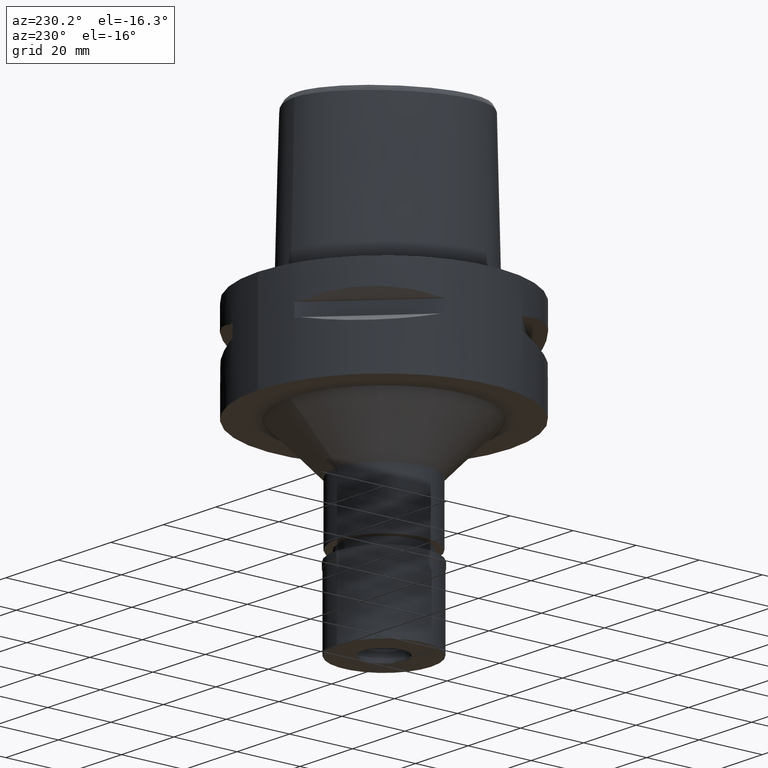
[diagram: clean part render]
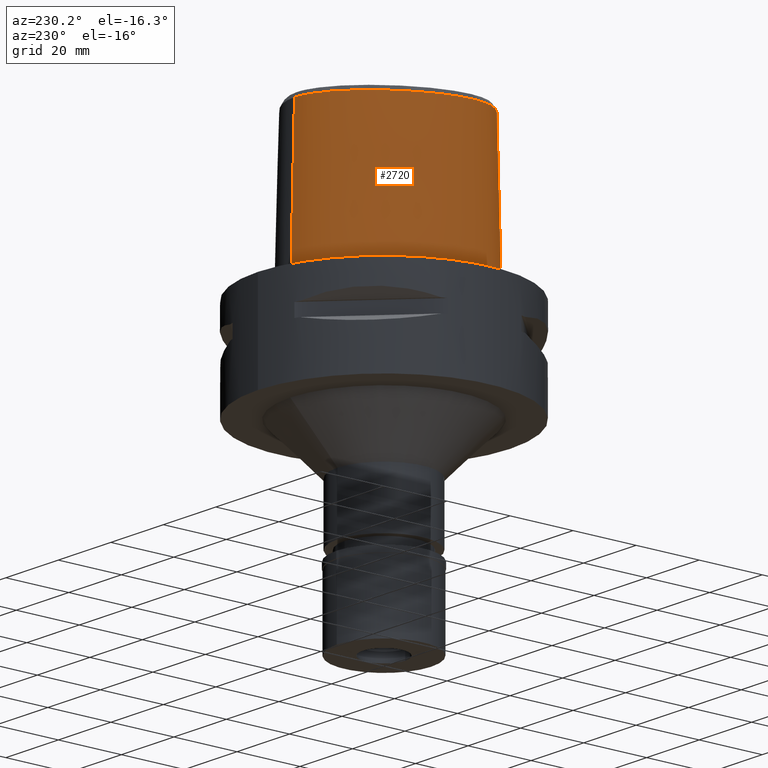
[diagram: same view with one face highlighted and labeled with its STEP entity id]
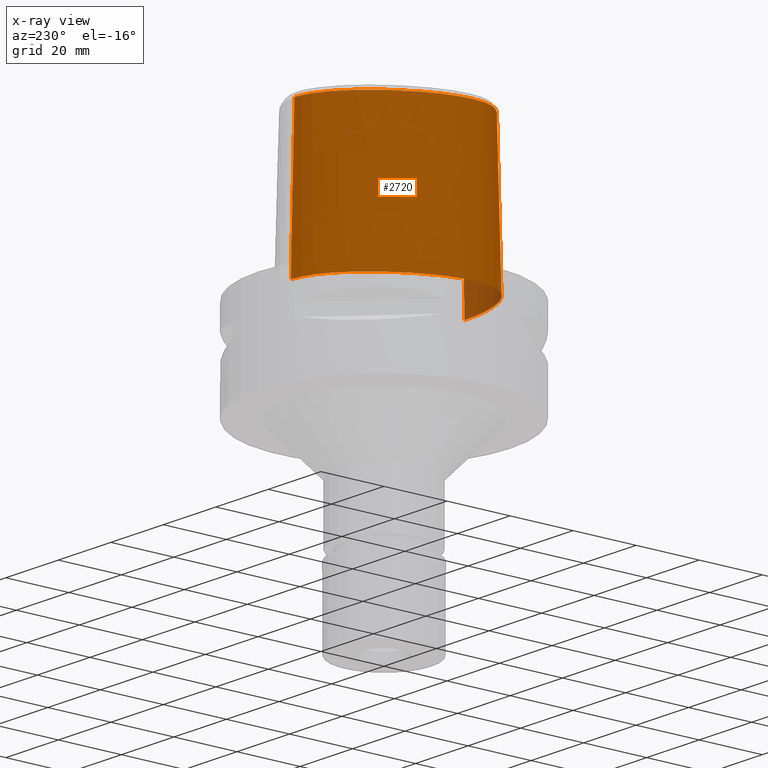
[diagram: x-ray of the same camera — body ghosted, the highlighted face saturated]
A machine part, auxiliary view. The second image highlights one B-rep face of the part: STEP entity #2720.
The next image is the same camera in x-ray: the body ghosted, the highlighted face saturated — about 3% of this face is hidden behind the body in this view.
In plain terms, the highlighted face is a freeform B-spline surface patch.
Its self-contained STEP definition (entity closure, byte-faithful):
#13 = CARTESIAN_POINT ( 'NONE',  ( -4.525164906393182918, -24.74975131237588499, 24.43996234641522136 ) ) ;
#42 = CARTESIAN_POINT ( 'NONE',  ( -2.466259342606089700, -24.79105701084885638, 28.82372012011441953 ) ) ;
#46 = CARTESIAN_POINT ( 'NONE',  ( 0.8462420188360999518, -25.18772735895000281, 15.19676982673000154 ) ) ;
#64 = CARTESIAN_POINT ( 'NONE',  ( -4.304263127651235088, -24.79330400446727012, 23.52125164125747148 ) ) ;
#65 = B_SPLINE_CURVE_WITH_KNOTS ( 'NONE', 3,
 ( #1397, #4050, #3643, #565 ),
 .UNSPECIFIED., .F., .F.,
 ( 4, 4 ),
 ( 0.0000000000000000000, 1.000000000000000000 ),
 .UNSPECIFIED. ) ;
#67 = CARTESIAN_POINT ( 'NONE',  ( -3.149084863333830864, 29.34015619913658668, 2.069908831630554863E-06 ) ) ;
#93 = CARTESIAN_POINT ( 'NONE',  ( -4.160790905028415310, -24.72274124955079699, 26.84178595757741448 ) ) ;
#109 = CARTESIAN_POINT ( 'NONE',  ( -0.7257524944403999090, 29.22811259544999984, 15.19676982673000154 ) ) ;
#119 = B_SPLINE_SURFACE_WITH_KNOTS ( 'NONE', 3, 3, ( 
 ( #4086, #2868, #3632, #2115 ),
 ( #4369, #2453, #2061, #156 ),
 ( #3606, #109, #1681, #1727 ),
 ( #1357, #4767, #1309, #4391 ),
 ( #927, #2092, #4522, #1465 ),
 ( #4600, #1879, #3048, #4187 ),
 ( #3804, #4156, #723, #316 ),
 ( #1777, #2197, #2248, #4208 ),
 ( #634, #3429, #1831, #2221 ),
 ( #690, #742, #4970, #1513 ),
 ( #2295, #3322, #2648, #3825 ),
 ( #2941, #4864, #4889, #3023 ),
 ( #1409, #1133, #4493, #2673 ),
 ( #2276, #1026, #2572, #4110 ),
 ( #3779, #3725, #292, #227 ),
 ( #1804, #3352, #1436, #4134 ),
 ( #2971, #4570, #1856, #1055 ),
 ( #2597, #2999, #662, #1104 ),
 ( #3382, #3751, #4919, #4546 ),
 ( #260, #1081, #2621, #3406 ),
 ( #4944, #1488, #4276, #3497 ),
 ( #388, #1581, #796, #4332 ),
 ( #2421, #1181, #3907, #4254 ),
 ( #412, #1560, #3175, #3098 ),
 ( #4711, #3125, #3152, #1252 ),
 ( #3549, #2718, #2787, #1627 ),
 ( #1225, #46, #2694, #4666 ) ),
 .UNSPECIFIED., .F., .F., .F.,
 ( 4, 1, 1, 1, 1, 1, 1, 1, 1, 1, 1, 1, 1, 1, 1, 1, 1, 1, 1, 1, 1, 1, 1, 1, 4 ),
 ( 4, 4 ),
 ( -0.01204223939044000123, 0.0000000000000000000, 0.04166666666721000056, 0.08333333333384000674, 0.1250000000004999889, 0.1666666666671000052, 0.2500000000004000134, 0.3333333333335999904, 0.4166666666668999985, 0.4583333333335000148, 0.5000000000001999512, 0.5416666666667999674, 0.5833333333333999837, 0.6250000000000000000, 0.6458333333333000637, 0.6666666666667000474, 0.6875000000000000000, 0.7083333333333000637, 0.7499999999999000799, 0.7916666666666000163, 0.8333333333332000326, 0.8749999999998000488, 0.9166666666664999852, 1.000000000000000000, 1.008851807892999997 ),
 ( 5.285500863371999805E-09, 0.9999997304393999364 ),
 .UNSPECIFIED. ) ;
#130 = ORIENTED_EDGE ( 'NONE', *, *, #2550, .F. ) ;
#137 = CARTESIAN_POINT ( 'NONE',  ( -25.28208905154471609, -12.92658008282552906, 46.52070903171001248 ) ) ;
#141 = EDGE_CURVE ( 'NONE', #557, #2676, #842, .T. ) ;
#156 = CARTESIAN_POINT ( 'NONE',  ( 0.5552374612796999731, 28.37983258200999970, 47.45113843858000280 ) ) ;
#173 = EDGE_CURVE ( 'NONE', #2676, #2875, #3344, .T. ) ;
#212 = CARTESIAN_POINT ( 'NONE',  ( -1.924424886932000021E-11, -25.57499999999999929, 1.155372094292999947E-13 ) ) ;
#219 = CARTESIAN_POINT ( 'NONE',  ( -4.156037652092050116, -24.81598364112166166, 23.14362525770356172 ) ) ;
#227 = CARTESIAN_POINT ( 'NONE',  ( -25.95531695925000193, -11.08496013620000120, 47.45113843858000280 ) ) ;
#246 = CARTESIAN_POINT ( 'NONE',  ( -3.310528231614961570, -24.91386642802240914, 21.87824841565021927 ) ) ;
#260 = CARTESIAN_POINT ( 'NONE',  ( -21.43542293252000164, -19.61750339137000054, -0.9304144791877999587 ) ) ;
#292 = CARTESIAN_POINT ( 'NONE',  ( -26.34453533278999871, -11.19579297593999989, 31.32395413266000261 ) ) ;
#299 = CARTESIAN_POINT ( 'NONE',  ( -25.63812385369142177, -14.80217770845578862, 2.069908831630554863E-06 ) ) ;
#313 = CARTESIAN_POINT ( 'NONE',  ( -4.472216406693000579, -24.20008985674000357, 46.52070903171000538 ) ) ;
#316 = CARTESIAN_POINT ( 'NONE',  ( -12.43420517238999956, 23.14497629673000034, 47.45113843858000280 ) ) ;
#334 = CARTESIAN_POINT ( 'NONE',  ( -5.572548441001262454, -24.09475885057291933, 46.52070903171001248 ) ) ;
#388 = CARTESIAN_POINT ( 'NONE',  ( -15.30623779601999956, -22.98697010193000168, -0.9304144791877999587 ) ) ;
#407 = CARTESIAN_POINT ( 'NONE',  ( -3.029613744918177254, -24.76954858878826471, 28.39612668127829664 ) ) ;
#412 = CARTESIAN_POINT ( 'NONE',  ( -6.695047936512000142, -25.26858194627000032, -0.9304144791877999587 ) ) ;
#434 = CARTESIAN_POINT ( 'NONE',  ( -1.722296434335160331, -24.81387508079695436, 29.21144792399134360 ) ) ;
#436 = CARTESIAN_POINT ( 'NONE',  ( -1.192039543198999986E-11, 28.41206021534999593, 46.52071719450999154 ) ) ;
#460 = CARTESIAN_POINT ( 'NONE',  ( -3.972636365745560560, -24.72937778087138483, 27.22257177644781123 ) ) ;
#463 = CARTESIAN_POINT ( 'NONE',  ( -1.049694954297157201, 29.57499994825872136, 2.069908831630554863E-06 ) ) ;
#479 = CARTESIAN_POINT ( 'NONE',  ( -24.62887906780190761, -14.21948995895221834, 46.52070903171001248 ) ) ;
#484 = CARTESIAN_POINT ( 'NONE',  ( -4.231109674115415942, -24.80473516988229576, 23.32640847146424079 ) ) ;
#492 = CARTESIAN_POINT ( 'NONE',  ( 1.372734075386999954E-14, -24.83629963747999980, 29.55000000000000071 ) ) ;
#503 = CARTESIAN_POINT ( 'NONE',  ( -2.391894337598000606E-12, -25.06378435148999984, 20.44999999999999929 ) ) ;
#516 = CARTESIAN_POINT ( 'NONE',  ( -1.703896036124440627, -24.81434470502066247, 29.21892603896938567 ) ) ;
#545 = CARTESIAN_POINT ( 'NONE',  ( -2.224291573387941146, -24.99814500580177778, 21.02832322413055266 ) ) ;
#557 = VERTEX_POINT ( 'NONE', #2498 ) ;
#565 = CARTESIAN_POINT ( 'NONE',  ( -4.602965076336000827, -24.35127131300999892, 40.00000000000000000 ) ) ;
#571 = CARTESIAN_POINT ( 'NONE',  ( -4.860694777295510950E-09, -24.74922215084398758, 33.03333351495473380 ) ) ;
#589 = CARTESIAN_POINT ( 'NONE',  ( -1.888484788635112821, -25.01654759054915544, 20.86028587658105948 ) ) ;
#593 = LINE ( 'NONE', #3314, #2149 ) ;
#610 = CARTESIAN_POINT ( 'NONE',  ( -15.29776364400822253, -22.96525385793894714, 2.069908831630554863E-06 ) ) ;
#619 = CARTESIAN_POINT ( 'NONE',  ( -1.754298049354609423, -25.02308377135079809, 20.80178576367026722 ) ) ;
#634 = CARTESIAN_POINT ( 'NONE',  ( -22.35908247772999857, 12.90902243054000031, -0.9304144791877999587 ) ) ;
#642 = CARTESIAN_POINT ( 'NONE',  ( -0.9629684636076033533, 28.41206041873670074, 46.52070903171001959 ) ) ;
#643 = CARTESIAN_POINT ( 'NONE',  ( -18.55019646601040861, -21.45394526691266535, 2.069908831630554863E-06 ) ) ;
#653 = CARTESIAN_POINT ( 'NONE',  ( -4.207829589086125033, -24.80824686016802261, 23.26889234074825552 ) ) ;
#662 = CARTESIAN_POINT ( 'NONE',  ( -24.14246365504000025, -15.65707285674999838, 31.32395413266000261 ) ) ;
#669 = CARTESIAN_POINT ( 'NONE',  ( -1.192039543198999986E-11, 28.41206021534999593, 46.52071719450999154 ) ) ;
#690 = CARTESIAN_POINT ( 'NONE',  ( -25.23075706188000211, 6.836210430589999554, -0.9304144791877999587 ) ) ;
#698 = CARTESIAN_POINT ( 'NONE',  ( -17.75297947154298583, 19.52218746696002327, 2.069908831630554863E-06 ) ) ;
#706 = VECTOR ( 'NONE', #1999, 1000.000000000000000 ) ;
#723 = CARTESIAN_POINT ( 'NONE',  ( -12.70057963592000050, 23.45048169750999989, 31.32395413266000261 ) ) ;
#742 = CARTESIAN_POINT ( 'NONE',  ( -24.85610465361000010, 6.683875467027998951, 15.19676982673000154 ) ) ;
#746 = VERTEX_POINT ( 'NONE', #3380 ) ;
#796 = CARTESIAN_POINT ( 'NONE',  ( -15.01246784649999988, -22.23414198506000261, 31.32395413266000261 ) ) ;
#816 = CARTESIAN_POINT ( 'NONE',  ( -3.192130741524222604, -24.76262039752748123, 28.24235843700053650 ) ) ;
#834 = EDGE_CURVE ( 'NONE', #746, #1247, #3824, .T. ) ;
#839 = CARTESIAN_POINT ( 'NONE',  ( -2.652045588672246712, -24.78435656486181671, 28.70018943685113300 ) ) ;
#842 = LINE ( 'NONE', #436, #706 ) ;
#864 = CARTESIAN_POINT ( 'NONE',  ( -1.733314166581077176, -24.81359117582310247, 29.20692116581588138 ) ) ;
#874 = ORIENTED_EDGE ( 'NONE', *, *, #4044, .F. ) ;
#889 = CARTESIAN_POINT ( 'NONE',  ( -4.256460948041316250, -24.80084657812259863, 23.39133378591558809 ) ) ;
#913 = CARTESIAN_POINT ( 'NONE',  ( -2.404910036719873911, -24.79321437770949998, 28.86288751850097256 ) ) ;
#927 = CARTESIAN_POINT ( 'NONE',  ( -6.271543170536000744, 28.37237220527000048, -0.9304144791877999587 ) ) ;
#960 = CARTESIAN_POINT ( 'NONE',  ( -25.97777222568499766, -11.09135444108204460, 46.52070903171001248 ) ) ;
#967 = CARTESIAN_POINT ( 'NONE',  ( -2.978031838724320313, -24.94531787462519290, 21.54303487591699806 ) ) ;
#1016 = CARTESIAN_POINT ( 'NONE',  ( -1.791332517423872117, -25.02133236723703646, 20.81740716610718422 ) ) ;
#1026 = CARTESIAN_POINT ( 'NONE',  ( -27.30517726777000220, -8.703986977921001511, 15.19676982673000154 ) ) ;
#1034 = CARTESIAN_POINT ( 'NONE',  ( -8.696078067631001218, 25.79654218449513792, 46.52070903171001248 ) ) ;
#1044 = CARTESIAN_POINT ( 'NONE',  ( -3.265305598819550514, -24.91820214815111356, 21.83126415608266768 ) ) ;
#1055 = CARTESIAN_POINT ( 'NONE',  ( -24.60869384085999911, -14.20783601273000052, 47.45113843858000280 ) ) ;
#1064 = CARTESIAN_POINT ( 'NONE',  ( -13.21796077126975177, 24.04386714829463045, 2.069908831630554863E-06 ) ) ;
#1081 = CARTESIAN_POINT ( 'NONE',  ( -21.19046239197000148, -19.29498367017000149, 15.19676982673000154 ) ) ;
#1104 = CARTESIAN_POINT ( 'NONE',  ( -23.81701507529000139, -15.41783917284999994, 47.45113843858000280 ) ) ;
#1133 = CARTESIAN_POINT ( 'NONE',  ( -27.47379251509000042, -5.347524336909000198, 15.19676982673000154 ) ) ;
#1137 = VERTEX_POINT ( 'NONE', #2869 ) ;
#1155 = CARTESIAN_POINT ( 'NONE',  ( -23.83579125613344374, -15.43164133759197654, 46.52070903171001248 ) ) ;
#1181 = CARTESIAN_POINT ( 'NONE',  ( -11.64093423979999997, -23.76831843705999958, 15.19676982673000154 ) ) ;
#1222 = CARTESIAN_POINT ( 'NONE',  ( -3.900686180405673831, -24.73222278675475394, 27.34720371156379315 ) ) ;
#1225 = CARTESIAN_POINT ( 'NONE',  ( 0.8532670503994000955, -25.59082387535999814, -0.9304144791877999587 ) ) ;
#1246 = CARTESIAN_POINT ( 'NONE',  ( -4.515545264917623314, -24.72200876241189249, 25.57765437788226848 ) ) ;
#1247 = VERTEX_POINT ( 'NONE', #2010 ) ;
#1252 = CARTESIAN_POINT ( 'NONE',  ( -2.334460938834000299, -24.41161097498000032, 47.45113843858000280 ) ) ;
#1273 = CARTESIAN_POINT ( 'NONE',  ( -1.150414049171941455, -24.82628098737378153, 29.40485804970646555 ) ) ;
#1290 = EDGE_CURVE ( 'NONE', #1137, #557, #4336, .T. ) ;
#1293 = CARTESIAN_POINT ( 'NONE',  ( -21.32746397970740659, 12.31340991043282429, 46.52070903171001248 ) ) ;
#1298 = CARTESIAN_POINT ( 'NONE',  ( -2.182391158247872998, -24.80062287573412050, 28.99314679185933485 ) ) ;
#1306 = ORIENTED_EDGE ( 'NONE', *, *, #1290, .T. ) ;
#1309 = CARTESIAN_POINT ( 'NONE',  ( -2.979937750282000142, 28.57037856186999747, 31.32395413266000261 ) ) ;
#1319 = CARTESIAN_POINT ( 'NONE',  ( -1.769098408929928201, -25.02238666794956856, 20.80800104489365765 ) ) ;
#1357 = CARTESIAN_POINT ( 'NONE',  ( -3.154109046518000170, 29.36302093381000233, -0.9304144791877999587 ) ) ;
#1397 = CARTESIAN_POINT ( 'NONE',  ( -4.472216406693000579, -24.20008985674000357, 46.52070903171000538 ) ) ;
#1409 = CARTESIAN_POINT ( 'NONE',  ( -27.87808443105999601, -5.337383714067000184, -0.9304144791877999587 ) ) ;
#1427 = CARTESIAN_POINT ( 'NONE',  ( -3.864901861996108856, -24.85421915751039990, 22.59833191710548661 ) ) ;
#1436 = CARTESIAN_POINT ( 'NONE',  ( -25.63065467241000306, -13.07945040987000063, 31.32395413266000261 ) ) ;
#1444 = CARTESIAN_POINT ( 'NONE',  ( -21.42129056220166206, -19.59889644298260336, 2.069908831630554863E-06 ) ) ;
#1465 = CARTESIAN_POINT ( 'NONE',  ( -5.801139431880000252, 27.25218159353000047, 47.45113843858000280 ) ) ;
#1488 = CARTESIAN_POINT ( 'NONE',  ( -18.36798846919000283, -21.11924012302000264, 15.19676982673000154 ) ) ;
#1513 = CARTESIAN_POINT ( 'NONE',  ( -24.10679983707999696, 6.379205539902000233, 47.45113843858000280 ) ) ;
#1514 = CARTESIAN_POINT ( 'NONE',  ( -1.451045074373000022E-08, -24.57504746727000011, 40.00000005214000254 ) ) ;
#1536 = CARTESIAN_POINT ( 'NONE',  ( -17.99241701171380114, -20.42933791836669144, 46.52070903171001248 ) ) ;
#1560 = CARTESIAN_POINT ( 'NONE',  ( -6.639625076614000143, -24.86795321094000144, 15.19676982673000154 ) ) ;
#1581 = CARTESIAN_POINT ( 'NONE',  ( -15.15935282126000061, -22.61055604350000081, 15.19676982673000154 ) ) ;
#1600 = CARTESIAN_POINT ( 'NONE',  ( -4.068466760397990711, -24.72584630863897104, 27.03834969240151054 ) ) ;
#1621 = CARTESIAN_POINT ( 'NONE',  ( -1.371865276104786036, -24.82198728018540024, 29.33894196721585601 ) ) ;
#1627 = CARTESIAN_POINT ( 'NONE',  ( 0.5548736449266000736, -24.38637835847000090, 47.45113843858000280 ) ) ;
#1668 = CARTESIAN_POINT ( 'NONE',  ( -4.549921019085022778, -24.74001865967040104, 24.72536366591951662 ) ) ;
#1681 = CARTESIAN_POINT ( 'NONE',  ( -0.7039271474484000146, 28.82397290355000052, 31.32395413266000261 ) ) ;
#1693 = CARTESIAN_POINT ( 'NONE',  ( 1.372734075386999954E-14, -24.83629963747999980, 29.55000000000000071 ) ) ;
#1727 = CARTESIAN_POINT ( 'NONE',  ( -0.6821018004563000892, 28.41983321165000120, 47.45113843858000280 ) ) ;
#1732 = CARTESIAN_POINT ( 'NONE',  ( -12.44957317646349182, 23.16260189109610224, 46.52070903171001248 ) ) ;
#1738 = CARTESIAN_POINT ( 'NONE',  ( -2.724936705864325237, -24.96514019468414247, 21.34399272640686362 ) ) ;
#1777 = CARTESIAN_POINT ( 'NONE',  ( -17.77103258632999783, 19.53703864451000172, -0.9304144791877999587 ) ) ;
#1785 = CARTESIAN_POINT ( 'NONE',  ( -27.85475984555585782, -5.337968751301732873, 2.069908831630554863E-06 ) ) ;
#1804 = CARTESIAN_POINT ( 'NONE',  ( -26.37046814545000117, -13.40391019821999841, -0.9304144791877999587 ) ) ;
#1822 = CARTESIAN_POINT ( 'NONE',  ( -1.979024681903801541, -25.01188081594382240, 20.90239184516417126 ) ) ;
#1831 = CARTESIAN_POINT ( 'NONE',  ( -21.65785138265000143, 12.50416150518999814, 31.32395413266000261 ) ) ;
#1856 = CARTESIAN_POINT ( 'NONE',  ( -24.95856549447000106, -14.40983450635999930, 31.32395413266000261 ) ) ;
#1879 = CARTESIAN_POINT ( 'NONE',  ( -9.105791465430000287, 26.46675914468000101, 15.19676982673000154 ) ) ;
#1881 = CARTESIAN_POINT ( 'NONE',  ( -3.083106526350740229, -24.50056604430718465, 40.00000010702065367 ) ) ;
#1901 = CARTESIAN_POINT ( 'NONE',  ( -7.937300651753690595, -23.78071178103805394, 46.52070903171001248 ) ) ;
#1916 = B_SPLINE_CURVE_WITH_KNOTS ( 'NONE', 3,
 ( #1693, #3148, #4777, #3545, #1273, #1621, #3951, #2808, #3926, #516, #434, #864, #2075, #2439, #1298, #3569, #2047, #913, #42, #3239, #3997, #4357, #839, #3170, #3621, #407, #3592, #2737, #816, #4733, #4707, #2361, #2831, #1222, #460, #1600, #4687, #4379, #93, #2759, #2415, #3902, #1973, #4296, #3217, #2388, #1246, #1996, #2466, #2781, #3517, #3976, #1668, #13, #4756, #3193, #4326, #64, #889, #484, #2589, #2933, #653, #219, #2558, #2958, #3691, #2155, #1427, #4126, #4510, #4879, #2489, #3372, #4437, #4098, #4481, #246, #1044, #2853, #2212, #3741, #967, #1738, #2105, #545, #3665, #1822, #589, #2126, #1016, #1319, #619, #4071, #2510, #2187, #3340 ),
 .UNSPECIFIED., .F., .F.,
 ( 4, 2, 2, 1, 1, 1, 2, 2, 2, 2, 1, 1, 2, 2, 2, 1, 1, 1, 2, 2, 2, 2, 2, 1, 1, 2, 2, 2, 2, 1, 2, 2, 2, 2, 1, 1, 1, 2, 2, 2, 2, 1, 1, 2, 2, 2, 1, 1, 1, 2, 2, 2, 2, 2, 1, 1, 2, 2, 4 ),
 ( 0.0000000000000000000, 0.06250000000001247613, 0.09375000000001861011, 0.1093750000000216910, 0.1171875000000232453, 0.1210937500000241335, 0.1230468750000244527, 0.1250000000000247580, 0.1562500000000264511, 0.1718750000000273115, 0.1796875000000277556, 0.1835937500000281442, 0.1855468750000283107, 0.1875000000000284772, 0.2187500000000370259, 0.2343750000000413003, 0.2421875000000431322, 0.2460937500000443257, 0.2480468750000446310, 0.2500000000000449085, 0.3125000000000409672, 0.3437500000000392464, 0.3593750000000383582, 0.3671875000000379141, 0.3710937500000381362, 0.3730468750000382472, 0.3750000000000383582, 0.4375000000000477951, 0.4687500000000521805, 0.4843750000000547340, 0.4921875000000556222, 0.5000000000000565104, 0.5625000000000652811, 0.5937500000000698330, 0.6093750000000720535, 0.6171875000000731637, 0.6210937500000740519, 0.6230468750000743849, 0.6250000000000748290, 0.6562500000000727196, 0.6718750000000717204, 0.6796875000000709433, 0.6835937500000702771, 0.6855468750000699441, 0.6875000000000695000, 0.7187500000000641709, 0.7343750000000615064, 0.7421875000000601741, 0.7460937500000598410, 0.7480468750000593969, 0.7500000000000588418, 0.8125000000000439648, 0.8437500000000363043, 0.8593750000000326406, 0.8671875000000306422, 0.8710937500000295319, 0.8730468750000290878, 0.8750000000000285327, 1.000000000000000000 ),
 .UNSPECIFIED. ) ;
#1944 = VERTEX_POINT ( 'NONE', #503 ) ;
#1973 = CARTESIAN_POINT ( 'NONE',  ( -4.201380620708010660, -24.72153596869750913, 26.74670933510337889 ) ) ;
#1996 = CARTESIAN_POINT ( 'NONE',  ( -4.536359085940563141, -24.72544551544397962, 25.35955479186922190 ) ) ;
#1999 = DIRECTION ( 'NONE',  ( 1.191983439330029973E-12, 0.02499051293969065113, -0.9996876883622259902 ) ) ;
#2010 = CARTESIAN_POINT ( 'NONE',  ( -4.602965076336000827, -24.35127131300999892, 40.00000000000000000 ) ) ;
#2040 = CARTESIAN_POINT ( 'NONE',  ( -24.12841474588220692, 6.387994236496820299, 46.52070903171001248 ) ) ;
#2047 = CARTESIAN_POINT ( 'NONE',  ( -2.352923008985152720, -24.79499099983797450, 28.89459205334687653 ) ) ;
#2061 = CARTESIAN_POINT ( 'NONE',  ( 0.5727458549800000798, 28.78269979258000077, 31.32395413266000261 ) ) ;
#2075 = CARTESIAN_POINT ( 'NONE',  ( -1.858668925427580998, -24.81033890557744215, 29.15501574767903392 ) ) ;
#2092 = CARTESIAN_POINT ( 'NONE',  ( -6.114741924316999366, 27.99897533469000166, 15.19676982673000154 ) ) ;
#2105 = CARTESIAN_POINT ( 'NONE',  ( -2.349040166744135405, -24.99044712210572783, 21.10040994412158710 ) ) ;
#2115 = CARTESIAN_POINT ( 'NONE',  ( 0.8322161959014000576, 28.36171632131999942, 47.45113843858000280 ) ) ;
#2120 = CARTESIAN_POINT ( 'NONE',  ( -26.52477687770876358, -8.605158286269224632, 46.52070903171001248 ) ) ;
#2126 = CARTESIAN_POINT ( 'NONE',  ( -1.843442154717178871, -25.01881181296639767, 20.83994273181362544 ) ) ;
#2147 = CARTESIAN_POINT ( 'NONE',  ( -26.38518529509199340, -1.941591755871595160, 46.52070903171001248 ) ) ;
#2148 = CARTESIAN_POINT ( 'NONE',  ( -26.77222809260952019, 1.900468736699280958, 2.069908831630554863E-06 ) ) ;
#2149 = VECTOR ( 'NONE', #3374, 1000.000000000000000 ) ;
#2155 = CARTESIAN_POINT ( 'NONE',  ( -3.896481458106405338, -24.85034248778502786, 22.65020889969156315 ) ) ;
#2187 = CARTESIAN_POINT ( 'NONE',  ( -0.5686770761356277903, -25.06378435148998918, 20.44999999999999929 ) ) ;
#2197 = CARTESIAN_POINT ( 'NONE',  ( -17.45811262618000015, 19.27961880632999936, 15.19676982673000154 ) ) ;
#2204 = CARTESIAN_POINT ( 'NONE',  ( -9.304563379539144918, 26.79191401821330132, 2.069908831630554863E-06 ) ) ;
#2212 = CARTESIAN_POINT ( 'NONE',  ( -3.232655617673357185, -24.92130312931369573, 21.79804365392789123 ) ) ;
#2221 = CARTESIAN_POINT ( 'NONE',  ( -21.30723583512000019, 12.30173104252000016, 47.45113843858000280 ) ) ;
#2248 = CARTESIAN_POINT ( 'NONE',  ( -17.14519266603999625, 19.02219896815000055, 31.32395413266000261 ) ) ;
#2256 = CARTESIAN_POINT ( 'NONE',  ( -22.33885461267844263, 12.89734372401957607, 2.069908831630554863E-06 ) ) ;
#2276 = CARTESIAN_POINT ( 'NONE',  ( -27.70696775908000120, -8.754869100840998897, -0.9304144791877999587 ) ) ;
#2295 = CARTESIAN_POINT ( 'NONE',  ( -26.79474625778999908, 1.906447387348000122, -0.9304144791877999587 ) ) ;
#2361 = CARTESIAN_POINT ( 'NONE',  ( -3.459328791567058303, -24.75086403572738192, 27.97515479135450533 ) ) ;
#2388 = CARTESIAN_POINT ( 'NONE',  ( -4.494536868532353679, -24.72037511897801210, 25.72370608057386931 ) ) ;
#2392 = CARTESIAN_POINT ( 'NONE',  ( -1.924424886932000021E-11, -25.57499999999999929, 1.155372094292999947E-13 ) ) ;
#2415 = CARTESIAN_POINT ( 'NONE',  ( -4.192714366872899667, -24.72178541175453148, 26.76740225217013958 ) ) ;
#2421 = CARTESIAN_POINT ( 'NONE',  ( -11.74634101485999871, -24.15815461099999695, -0.9304144791877999587 ) ) ;
#2434 = CARTESIAN_POINT ( 'NONE',  ( -25.64632274977740423, 1.601536978523978805, 46.52070903171001248 ) ) ;
#2439 = CARTESIAN_POINT ( 'NONE',  ( -1.984502176478918356, -24.80676203802990898, 29.09712838306174376 ) ) ;
#2447 = CARTESIAN_POINT ( 'NONE',  ( -1.451045074373000022E-08, -24.57504746727000011, 40.00000005214000254 ) ) ;
#2453 = CARTESIAN_POINT ( 'NONE',  ( 0.5902542486802999644, 29.18556700315000185, 15.19676982673000154 ) ) ;
#2458 = EDGE_LOOP ( 'NONE', ( #3017, #130, #874, #4000, #2819, #1306, #3935, #4792 ) ) ;
#2466 = CARTESIAN_POINT ( 'NONE',  ( -4.544092989177465292, -24.72741046393034026, 25.25074796833678192 ) ) ;
#2489 = CARTESIAN_POINT ( 'NONE',  ( -3.790579096131128534, -24.86307050843589295, 22.48323682071580976 ) ) ;
#2498 = CARTESIAN_POINT ( 'NONE',  ( -1.192039543198999986E-11, 28.41206021534999593, 46.52071719450999154 ) ) ;
#2510 = CARTESIAN_POINT ( 'NONE',  ( -1.165430911967662686, -25.05044697737378812, 20.55812161079838418 ) ) ;
#2544 = FACE_OUTER_BOUND ( 'NONE', #2458, .T. ) ;
#2549 = CARTESIAN_POINT ( 'NONE',  ( -27.68378748685807267, -8.751933587218788446, 2.069908831630554863E-06 ) ) ;
#2550 = EDGE_CURVE ( 'NONE', #4266, #1944, #1916, .T. ) ;
#2558 = CARTESIAN_POINT ( 'NONE',  ( -4.098306025962062726, -24.82420565877260188, 23.01795395542337275 ) ) ;
#2572 = CARTESIAN_POINT ( 'NONE',  ( -26.90338677646000320, -8.653104855000998796, 31.32395413266000261 ) ) ;
#2589 = CARTESIAN_POINT ( 'NONE',  ( -4.219931661120546629, -24.80642684597903269, 23.29859562715319754 ) ) ;
#2591 = EDGE_CURVE ( 'NONE', #1137, #1247, #65, .T. ) ;
#2597 = CARTESIAN_POINT ( 'NONE',  ( -24.79336081454000151, -16.13554022456000325, -0.9304144791877999587 ) ) ;
#2621 = CARTESIAN_POINT ( 'NONE',  ( -20.94550185141999776, -18.97246394897999977, 31.32395413266000261 ) ) ;
#2648 = CARTESIAN_POINT ( 'NONE',  ( -26.01411826820000073, 1.699187959285999971, 31.32395413266000261 ) ) ;
#2673 = CARTESIAN_POINT ( 'NONE',  ( -26.66520868315000214, -5.367805582592000135, 47.45113843858000280 ) ) ;
#2676 = VERTEX_POINT ( 'NONE', #4816 ) ;
#2694 = CARTESIAN_POINT ( 'NONE',  ( 0.8392169872728000302, -24.78463084252999948, 31.32395413266000261 ) ) ;
#2718 = CARTESIAN_POINT ( 'NONE',  ( 0.5642418783911000713, -25.19264542560000208, 15.19676982673000154 ) ) ;
#2720 = ADVANCED_FACE ( 'NONE', ( #2544 ), #119, .T. ) ;
#2726 = CARTESIAN_POINT ( 'NONE',  ( 1.372734075386999954E-14, -24.83629963747999980, 29.55000000000000071 ) ) ;
#2737 = CARTESIAN_POINT ( 'NONE',  ( -3.172181247291613548, -24.76348918694394996, 28.26195868750489382 ) ) ;
#2759 = CARTESIAN_POINT ( 'NONE',  ( -4.183313010704267754, -24.72206008749306605, 26.78965014441782344 ) ) ;
#2781 = CARTESIAN_POINT ( 'NONE',  ( -4.547910621292599487, -24.72974527037217740, 25.14250056300025093 ) ) ;
#2787 = CARTESIAN_POINT ( 'NONE',  ( 0.5595577616588000014, -24.78951189203000283, 31.32395413266000261 ) ) ;
#2808 = CARTESIAN_POINT ( 'NONE',  ( -1.611811031576410702, -24.81663505490544352, 29.25526689574349248 ) ) ;
#2819 = ORIENTED_EDGE ( 'NONE', *, *, #2591, .F. ) ;
#2831 = CARTESIAN_POINT ( 'NONE',  ( -3.657706900519464455, -24.74222987759011971, 27.72260022703280669 ) ) ;
#2853 = CARTESIAN_POINT ( 'NONE',  ( -3.245740051672679982, -24.92006245179830515, 21.81130774429478691 ) ) ;
#2861 = CARTESIAN_POINT ( 'NONE',  ( -4.851900746418723189E-09, -24.66214466420228035, 36.51666702990947044 ) ) ;
#2868 = CARTESIAN_POINT ( 'NONE',  ( 0.8850788443571998565, 29.16624661379999850, 15.19676982673000154 ) ) ;
#2869 = CARTESIAN_POINT ( 'NONE',  ( -4.472216406693000579, -24.20008985674000357, 46.52070903171000538 ) ) ;
#2875 = VERTEX_POINT ( 'NONE', #2392 ) ;
#2902 = CARTESIAN_POINT ( 'NONE',  ( -26.68853359098529054, -5.367220537272476832, 46.52070903171001248 ) ) ;
#2925 = CARTESIAN_POINT ( 'NONE',  ( -27.53737506733907026, -1.765625007829277227, 2.069908831630554863E-06 ) ) ;
#2933 = CARTESIAN_POINT ( 'NONE',  ( -4.212409792926640861, -24.80756021599265537, 23.28005703556031847 ) ) ;
#2941 = CARTESIAN_POINT ( 'NONE',  ( -27.56041892247000291, -1.762105663753000151, -0.9304144791877999587 ) ) ;
#2958 = CARTESIAN_POINT ( 'NONE',  ( -3.994669282579149439, -24.83794919743794694, 22.82040209576782175 ) ) ;
#2971 = CARTESIAN_POINT ( 'NONE',  ( -25.65830880169000139, -14.81383149363000129, -0.9304144791877999587 ) ) ;
#2980 = CARTESIAN_POINT ( 'NONE',  ( -11.74025984123153421, -24.13566401246836790, 2.069908831630554863E-06 ) ) ;
#2999 = CARTESIAN_POINT ( 'NONE',  ( -24.46791223479000266, -15.89630654065999771, 15.19676982673000154 ) ) ;
#3006 = CARTESIAN_POINT ( 'NONE',  ( -26.34912732471205032, -13.39455076042603388, 2.069908831630554863E-06 ) ) ;
#3017 = ORIENTED_EDGE ( 'NONE', *, *, #4933, .F. ) ;
#3023 = CARTESIAN_POINT ( 'NONE',  ( -26.36214112150999966, -1.945111148583000160, 47.45113843858000280 ) ) ;
#3048 = CARTESIAN_POINT ( 'NONE',  ( -8.894849813561998886, 26.12169678290999641, 31.32395413266000261 ) ) ;
#3071 = CARTESIAN_POINT ( 'NONE',  ( -20.71467387648883474, -18.66855143331319411, 46.52070903171001248 ) ) ;
#3098 = CARTESIAN_POINT ( 'NONE',  ( -6.528779356817000057, -24.06669574028000369, 47.45113843858000280 ) ) ;
#3125 = CARTESIAN_POINT ( 'NONE',  ( -2.373852718313000043, -25.21827345060999903, 15.19676982673000154 ) ) ;
#3148 = CARTESIAN_POINT ( 'NONE',  ( -0.2769662722952261902, -24.83629963748000335, 29.55000000000000782 ) ) ;
#3152 = CARTESIAN_POINT ( 'NONE',  ( -2.354156828573999771, -24.81494221279999834, 31.32395413266000261 ) ) ;
#3170 = CARTESIAN_POINT ( 'NONE',  ( -2.771982096821714592, -24.77983138410382580, 28.61121349796241731 ) ) ;
#3173 = CARTESIAN_POINT ( 'NONE',  ( 4.354885274137000462E-11, 29.57499999998999840, 1.090979158864999866E-13 ) ) ;
#3175 = CARTESIAN_POINT ( 'NONE',  ( -6.584202216716000144, -24.46732447561000257, 31.32395413266000261 ) ) ;
#3193 = CARTESIAN_POINT ( 'NONE',  ( -4.406213798168594487, -24.77565163120076619, 23.85472934568122128 ) ) ;
#3217 = CARTESIAN_POINT ( 'NONE',  ( -4.409270466778650643, -24.71744676443888977, 26.16158622814598544 ) ) ;
#3239 = CARTESIAN_POINT ( 'NONE',  ( -2.492689275651778225, -24.79011428768485104, 28.80645659143167947 ) ) ;
#3293 = B_SPLINE_CURVE_WITH_KNOTS ( 'NONE', 3,
 ( #2447, #2861, #571, #492 ),
 .UNSPECIFIED., .F., .F.,
 ( 4, 4 ),
 ( 0.0000000000000000000, 1.000000000000000000 ),
 .UNSPECIFIED. ) ;
#3314 = CARTESIAN_POINT ( 'NONE',  ( -2.391894337598000606E-12, -25.06378435148999984, 20.44999999999999929 ) ) ;
#3322 = CARTESIAN_POINT ( 'NONE',  ( -26.40443226300000390, 1.802817673317000047, 15.19676982673000154 ) ) ;
#3340 = CARTESIAN_POINT ( 'NONE',  ( -2.391894337598000606E-12, -25.06378435148999984, 20.44999999999999929 ) ) ;
#3344 = B_SPLINE_CURVE_WITH_KNOTS ( 'NONE', 3,
 ( #3173, #463, #67, #4530, #2204, #1064, #698, #2256, #3786, #2148, #2925, #1785, #2549, #4871, #3006, #299, #4091, #4500, #1444, #643, #610, #2980, #4473, #3732, #212 ),
 .UNSPECIFIED., .F., .F.,
 ( 4, 1, 1, 1, 1, 1, 1, 1, 1, 1, 1, 1, 1, 1, 1, 1, 1, 1, 1, 1, 1, 1, 4 ),
 ( 0.0000000000000000000, 0.04166666666721000056, 0.08333333333384000674, 0.1250000000004999889, 0.1666666666671000052, 0.2500000000004000134, 0.3333333333335999904, 0.4166666666668999985, 0.4583333333335000148, 0.5000000000001999512, 0.5416666666667999674, 0.5833333333333999837, 0.6250000000000000000, 0.6458333333333000637, 0.6666666666667000474, 0.6875000000000000000, 0.7083333333333000637, 0.7499999999999000799, 0.7916666666666000163, 0.8333333333332000326, 0.8749999999998000488, 0.9166666666664999852, 1.000000000000000000 ),
 .UNSPECIFIED. ) ;
#3352 = CARTESIAN_POINT ( 'NONE',  ( -26.00056140893000034, -13.24168030403999907, 15.19676982673000154 ) ) ;
#3372 = CARTESIAN_POINT ( 'NONE',  ( -3.702709904148361097, -24.87336589807970100, 22.35148037005134825 ) ) ;
#3374 = DIRECTION ( 'NONE',  ( -8.238186476906734356E-13, -0.02499051295403921166, -0.9996876883618673881 ) ) ;
#3380 = CARTESIAN_POINT ( 'NONE',  ( -1.451045074373000022E-08, -24.57504746727000011, 40.00000005214000254 ) ) ;
#3382 = CARTESIAN_POINT ( 'NONE',  ( -23.44929528159000043, -17.78045351951999820, -0.9304144791877999587 ) ) ;
#3406 = CARTESIAN_POINT ( 'NONE',  ( -20.70054131086999760, -18.64994422779000161, 47.45113843858000280 ) ) ;
#3429 = CARTESIAN_POINT ( 'NONE',  ( -22.00846693019000000, 12.70659196786999878, 15.19676982673000154 ) ) ;
#3449 = CARTESIAN_POINT ( 'NONE',  ( -11.43620194735647111, -23.01113699852760774, 46.52070903171001248 ) ) ;
#3497 = CARTESIAN_POINT ( 'NONE',  ( -17.98126123957000289, -20.40884543513000082, 47.45113843858000280 ) ) ;
#3517 = CARTESIAN_POINT ( 'NONE',  ( -4.549596676163409015, -24.73138399865684534, 25.07048059282040242 ) ) ;
#3545 = CARTESIAN_POINT ( 'NONE',  ( -1.003044292485744782, -24.82866638025621597, 29.44055839642930295 ) ) ;
#3549 = CARTESIAN_POINT ( 'NONE',  ( 0.5689259951232999990, -25.59577895916000045, -0.9304144791877999587 ) ) ;
#3569 = CARTESIAN_POINT ( 'NONE',  ( -2.249867388138761637, -24.79844751147311044, 28.95562542824866270 ) ) ;
#3592 = CARTESIAN_POINT ( 'NONE',  ( -3.125212091966393047, -24.76551320166747416, 28.30726214217402870 ) ) ;
#3606 = CARTESIAN_POINT ( 'NONE',  ( -0.7475778414324999455, 29.63225228734000183, -0.9304144791877999587 ) ) ;
#3621 = CARTESIAN_POINT ( 'NONE',  ( -2.944900302942495163, -24.77298581947537315, 28.46923970402317039 ) ) ;
#3632 = CARTESIAN_POINT ( 'NONE',  ( 0.8586475201293000126, 28.76398146755999718, 31.32395413266000261 ) ) ;
#3643 = CARTESIAN_POINT ( 'NONE',  ( -4.560196949595972882, -24.30012304335829398, 42.17356967723666372 ) ) ;
#3665 = CARTESIAN_POINT ( 'NONE',  ( -2.039991806424829690, -25.00858519317916162, 20.93235562228261415 ) ) ;
#3691 = CARTESIAN_POINT ( 'NONE',  ( -3.957281473797835236, -24.84276546235788530, 22.75305380327887406 ) ) ;
#3709 = CARTESIAN_POINT ( 'NONE',  ( -2.897876354793059495, 28.19692242654562619, 46.52070903171001248 ) ) ;
#3725 = CARTESIAN_POINT ( 'NONE',  ( -26.73375370632999903, -11.30662581568000036, 15.19676982673000154 ) ) ;
#3732 = CARTESIAN_POINT ( 'NONE',  ( -2.676740182709638205, -25.57499994825387546, 2.069908831630554863E-06 ) ) ;
#3741 = CARTESIAN_POINT ( 'NONE',  ( -3.227056402119868217, -24.92183285210593269, 21.79239637393079576 ) ) ;
#3751 = CARTESIAN_POINT ( 'NONE',  ( -23.15870205039000140, -17.49879694148999931, 15.19676982673000154 ) ) ;
#3779 = CARTESIAN_POINT ( 'NONE',  ( -27.12297207986999936, -11.41745865541999905, -0.9304144791877999587 ) ) ;
#3786 = CARTESIAN_POINT ( 'NONE',  ( -25.20914245177814905, 6.827421855447834531, 2.069908831630554863E-06 ) ) ;
#3804 = CARTESIAN_POINT ( 'NONE',  ( -13.23332856296999971, 24.06149249908999721, -0.9304144791877999587 ) ) ;
#3824 = B_SPLINE_CURVE_WITH_KNOTS ( 'NONE', 3,
 ( #1514, #5047, #1881, #3884 ),
 .UNSPECIFIED., .F., .F.,
 ( 4, 4 ),
 ( 0.0000000000000000000, 1.000000000000000000 ),
 .UNSPECIFIED. ) ;
#3825 = CARTESIAN_POINT ( 'NONE',  ( -25.62380427340999844, 1.595558245254000029, 47.45113843858000280 ) ) ;
#3884 = CARTESIAN_POINT ( 'NONE',  ( -4.602965076336000827, -24.35127131300999892, 40.00000000000000000 ) ) ;
#3902 = CARTESIAN_POINT ( 'NONE',  ( -4.198926685529636771, -24.72160612811942215, 26.75259212959135979 ) ) ;
#3907 = CARTESIAN_POINT ( 'NONE',  ( -11.53552746475000035, -23.37848226313000310, 31.32395413266000261 ) ) ;
#3926 = CARTESIAN_POINT ( 'NONE',  ( -1.676286854294903872, -24.81504355059169598, 29.23004141242414988 ) ) ;
#3935 = ORIENTED_EDGE ( 'NONE', *, *, #141, .T. ) ;
#3951 = CARTESIAN_POINT ( 'NONE',  ( -1.482686770868453241, -24.81966152212502408, 29.30289444251137709 ) ) ;
#3976 = CARTESIAN_POINT ( 'NONE',  ( -4.550009659928394790, -24.73228693208369577, 25.03285394944880693 ) ) ;
#3997 = CARTESIAN_POINT ( 'NONE',  ( -2.510338385226314362, -24.78948177504960881, 28.79484028637073934 ) ) ;
#4000 = ORIENTED_EDGE ( 'NONE', *, *, #834, .T. ) ;
#4044 = EDGE_CURVE ( 'NONE', #746, #4266, #3293, .T. ) ;
#4050 = CARTESIAN_POINT ( 'NONE',  ( -4.516620047288355977, -24.24973673731960844, 44.34713935447333455 ) ) ;
#4071 = CARTESIAN_POINT ( 'NONE',  ( -1.748501813549748318, -25.02335543620021596, 20.79936485166492943 ) ) ;
#4086 = CARTESIAN_POINT ( 'NONE',  ( 0.9115101685851000335, 29.56851176004000337, -0.9304144791877999587 ) ) ;
#4091 = CARTESIAN_POINT ( 'NONE',  ( -24.77458489316802215, -16.12173825055265297, 2.069908831630554863E-06 ) ) ;
#4098 = CARTESIAN_POINT ( 'NONE',  ( -3.472208232089675217, -24.89783358727838092, 22.05860165752379487 ) ) ;
#4110 = CARTESIAN_POINT ( 'NONE',  ( -26.50159628515000421, -8.602222732079999545, 47.45113843858000280 ) ) ;
#4126 = CARTESIAN_POINT ( 'NONE',  ( -3.825895809632591682, -24.85889621362735369, 22.53711802513202400 ) ) ;
#4134 = CARTESIAN_POINT ( 'NONE',  ( -25.26074793589000222, -12.91722051569000129, 47.45113843858000280 ) ) ;
#4156 = CARTESIAN_POINT ( 'NONE',  ( -12.96695409944000055, 23.75598709830000033, 15.19676982673000154 ) ) ;
#4187 = CARTESIAN_POINT ( 'NONE',  ( -8.683908161694001038, 25.77663442114999981, 47.45113843858000280 ) ) ;
#4208 = CARTESIAN_POINT ( 'NONE',  ( -16.83227270589000213, 18.76477912996999819, 47.45113843858000280 ) ) ;
#4254 = CARTESIAN_POINT ( 'NONE',  ( -11.43012068968999984, -22.98864608919000219, 47.45113843858000280 ) ) ;
#4266 = VERTEX_POINT ( 'NONE', #2726 ) ;
#4276 = CARTESIAN_POINT ( 'NONE',  ( -18.17462485438000286, -20.76404277907000306, 31.32395413266000261 ) ) ;
#4296 = CARTESIAN_POINT ( 'NONE',  ( -4.322680882349038356, -24.71812462909619512, 26.45319451590574999 ) ) ;
#4326 = CARTESIAN_POINT ( 'NONE',  ( -4.340344041599786706, -24.78724112967249127, 23.63256450709621603 ) ) ;
#4332 = CARTESIAN_POINT ( 'NONE',  ( -14.86558287173000004, -21.85772792662999819, 47.45113843858000280 ) ) ;
#4336 = B_SPLINE_CURVE_WITH_KNOTS ( 'NONE', 3,
 ( #313, #334, #1901, #3449, #4993, #1536, #3071, #4620, #1155, #479, #137, #960, #2120, #2902, #2147, #2434, #2040, #1293, #4373, #1732, #1034, #4952, #3709, #642, #669 ),
 .UNSPECIFIED., .F., .F.,
 ( 4, 1, 1, 1, 1, 1, 1, 1, 1, 1, 1, 1, 1, 1, 1, 1, 1, 1, 1, 1, 1, 1, 4 ),
 ( 0.0000000000000000000, 0.03735859270279091870, 0.08111502030725240009, 0.1248714479116089654, 0.1686278755159655307, 0.2123843031204269982, 0.2561407307247835496, 0.2780189445269619086, 0.2998971583291401011, 0.3217753721314233761, 0.3436535859336017351, 0.3874100135379582865, 0.4311664411423148380, 0.4749228687466713894, 0.5186792963511328569, 0.5624357239554894639, 0.6499485791643075938, 0.7374614343730205857, 0.8249742895818388266, 0.8687307171861952115, 0.9124871447906148791, 0.9562435723950029054, 1.000000000000000000 ),
 .UNSPECIFIED. ) ;
#4357 = CARTESIAN_POINT ( 'NONE',  ( -2.520279592225538323, -24.78912363236072380, 28.78824203054452013 ) ) ;
#4369 = CARTESIAN_POINT ( 'NONE',  ( 0.6077626423806999911, 29.58843421373000027, -0.9304144791877999587 ) ) ;
#4373 = CARTESIAN_POINT ( 'NONE',  ( -16.85032607015974193, 18.77963051275393980, 46.52070903171001248 ) ) ;
#4379 = CARTESIAN_POINT ( 'NONE',  ( -4.140463633211603600, -24.72339410617370703, 26.88684090364281687 ) ) ;
#4391 = CARTESIAN_POINT ( 'NONE',  ( -2.892852102164999994, 28.17405737590000214, 47.45113843858000280 ) ) ;
#4437 = CARTESIAN_POINT ( 'NONE',  ( -3.613911253851772809, -24.88311648731248837, 22.23154152753995305 ) ) ;
#4473 = CARTESIAN_POINT ( 'NONE',  ( -6.691850456711970985, -25.24546869858067311, 2.069908831630554863E-06 ) ) ;
#4481 = CARTESIAN_POINT ( 'NONE',  ( -3.399231802462701957, -24.90521494129050595, 21.97387284700376853 ) ) ;
#4493 = CARTESIAN_POINT ( 'NONE',  ( -27.06950059912000128, -5.357664959751001099, 31.32395413266000261 ) ) ;
#4500 = CARTESIAN_POINT ( 'NONE',  ( -23.43253025018494284, -17.76420406540637487, 2.069908831630554863E-06 ) ) ;
#4510 = CARTESIAN_POINT ( 'NONE',  ( -3.808704889424058493, -24.86093372512832289, 22.51074749453148272 ) ) ;
#4522 = CARTESIAN_POINT ( 'NONE',  ( -5.957940678098999854, 27.62557846410999929, 31.32395413266000261 ) ) ;
#4530 = CARTESIAN_POINT ( 'NONE',  ( -6.262496924667305009, 28.35083003019601477, 2.069908831630554863E-06 ) ) ;
#4546 = CARTESIAN_POINT ( 'NONE',  ( -22.57751558798999980, -16.93548378543000155, 47.45113843858000280 ) ) ;
#4570 = CARTESIAN_POINT ( 'NONE',  ( -25.30843714807999945, -14.61183299999999896, 15.19676982673000154 ) ) ;
#4600 = CARTESIAN_POINT ( 'NONE',  ( -9.316733117297999911, 26.81182150644999851, -0.9304144791877999587 ) ) ;
#4620 = CARTESIAN_POINT ( 'NONE',  ( -22.59428085107728279, -16.95173346410089366, 46.52070903171001248 ) ) ;
#4666 = CARTESIAN_POINT ( 'NONE',  ( 0.8321919557094999975, -24.38153432610999971, 47.45113843858000280 ) ) ;
#4687 = CARTESIAN_POINT ( 'NONE',  ( -4.098396066241291713, -24.72479182399360909, 26.97739233806743542 ) ) ;
#4707 = CARTESIAN_POINT ( 'NONE',  ( -3.211065830875714511, -24.76179211193616680, 28.22361125334814247 ) ) ;
#4711 = CARTESIAN_POINT ( 'NONE',  ( -2.393548608051999871, -25.62160468843000061, -0.9304144791877999587 ) ) ;
#4733 = CARTESIAN_POINT ( 'NONE',  ( -3.205390121191531883, -24.76204090357538590, 28.22925085367182874 ) ) ;
#4756 = CARTESIAN_POINT ( 'NONE',  ( -4.441732659387156446, -24.76864030037672038, 24.00221451032558662 ) ) ;
#4767 = CARTESIAN_POINT ( 'NONE',  ( -3.067023398399999934, 28.96669974783999990, 15.19676982673000154 ) ) ;
#4777 = CARTESIAN_POINT ( 'NONE',  ( -0.5644801122057823139, -24.83439132317405296, 29.52465347867347489 ) ) ;
#4792 = ORIENTED_EDGE ( 'NONE', *, *, #173, .T. ) ;
#4816 = CARTESIAN_POINT ( 'NONE',  ( 4.354885274137000462E-11, 29.57499999998999840, 1.090979158864999866E-13 ) ) ;
#4864 = CARTESIAN_POINT ( 'NONE',  ( -27.16099298881000124, -1.823107492030000110, 15.19676982673000154 ) ) ;
#4871 = CARTESIAN_POINT ( 'NONE',  ( -27.10051712374841415, -11.41106443890201660, 2.069908831630554863E-06 ) ) ;
#4879 = CARTESIAN_POINT ( 'NONE',  ( -3.797137772289173707, -24.86229941254663700, 22.49313827486260209 ) ) ;
#4889 = CARTESIAN_POINT ( 'NONE',  ( -26.76156705516000045, -1.884109320305999979, 31.32395413266000261 ) ) ;
#4919 = CARTESIAN_POINT ( 'NONE',  ( -22.86810881918999883, -17.21714036346000043, 31.32395413266000261 ) ) ;
#4933 = EDGE_CURVE ( 'NONE', #1944, #2875, #593, .T. ) ;
#4944 = CARTESIAN_POINT ( 'NONE',  ( -18.56135208398999836, -21.47443746695999778, -0.9304144791877999587 ) ) ;
#4952 = CARTESIAN_POINT ( 'NONE',  ( -5.810185802762140028, 27.27372406630333757, 46.52070903171001248 ) ) ;
#4970 = CARTESIAN_POINT ( 'NONE',  ( -24.48145224535000253, 6.531540503465000036, 31.32395413266000261 ) ) ;
#4993 = CARTESIAN_POINT ( 'NONE',  ( -14.87405714084981234, -21.87944447072592880, 46.52070903171001248 ) ) ;
#5047 = CARTESIAN_POINT ( 'NONE',  ( -1.541632273121933627, -24.57506718850400418, 40.00000010702065367 ) ) ;